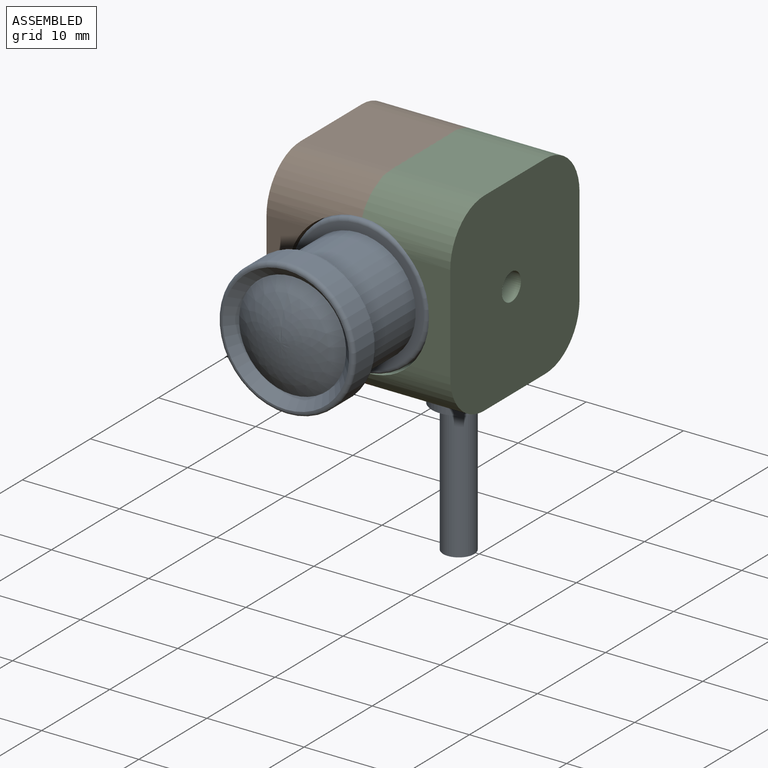
[diagram: assembled view]
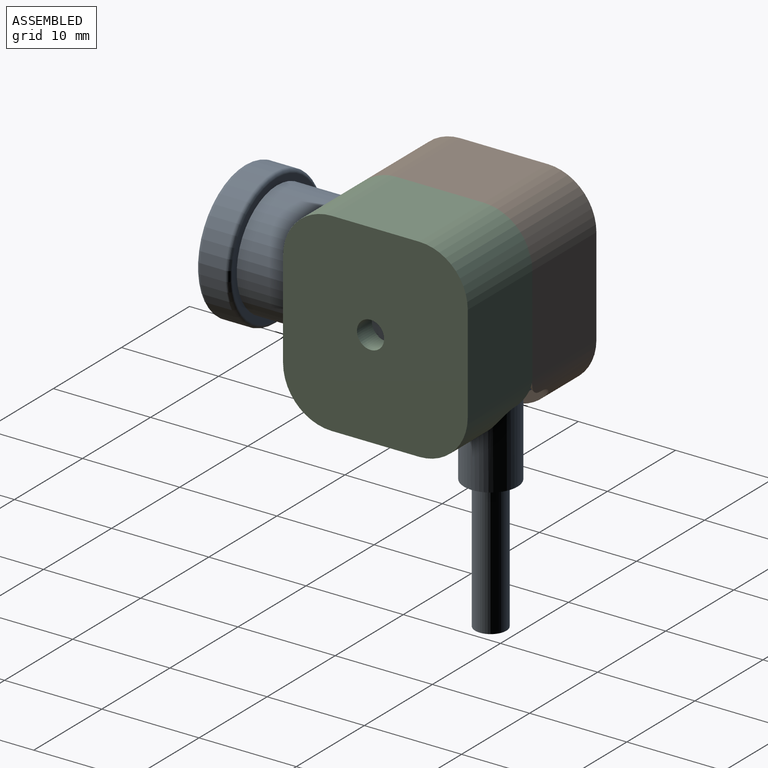
[diagram: assembled view, second angle]
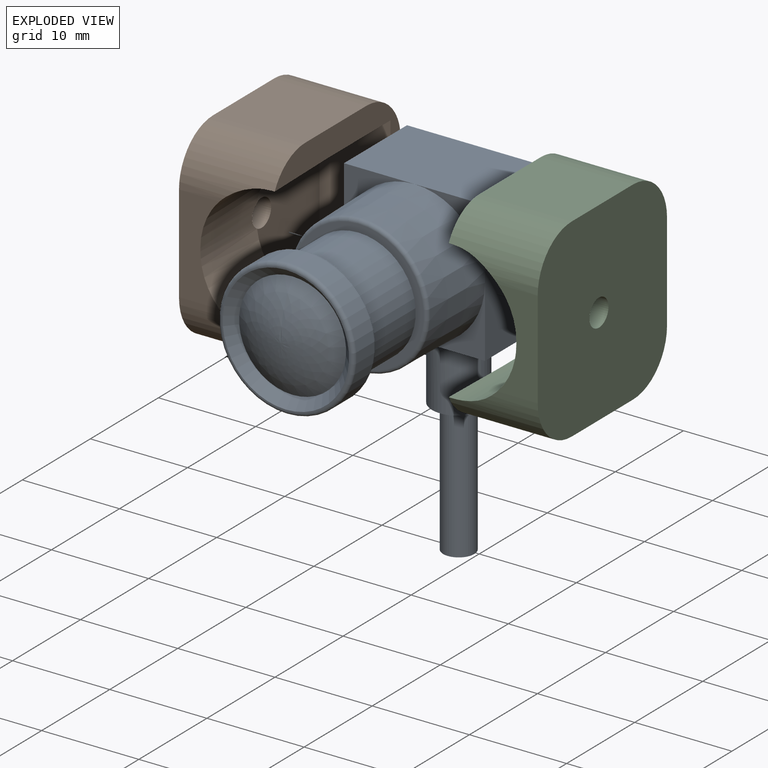
[diagram: exploded view]
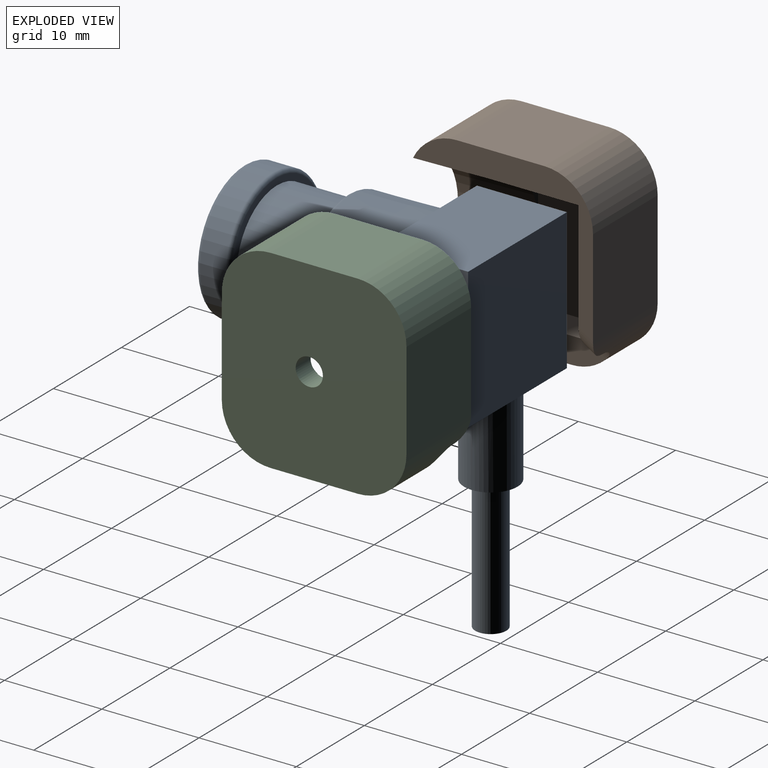
[diagram: exploded view, second angle]
ASSEMBLY  parts=3 mates=2
PART A: 27 faces, bbox 15.4x28.2x36.9 mm
  f0: plane 13.41x13.41mm, normal (0,-1,0), area 32mm2, adj f11,f23
  f1: cone r=7.1mm half-angle=1deg, axis (0,1,0), area 354.5mm2, adj f2,f3,f4,f8,f23
  f2: plane 7.25x7.25mm, normal (0,-1,0), area 11.3mm2, adj f1,f5,f10
  f3: plane 7.25x7.25mm, normal (0,-1,0), area 11.3mm2, adj f1,f9,f10
  f4: plane 7.25x7.25mm, normal (0,-1,0), area 11.3mm2, adj f1,f6,f9
  f5: plane 14.5x9.25mm, normal (0,0,-1), area 110.4mm2, adj f2,f6,f7,f8,f10,f16
  f6: plane 14.5x9.25mm, normal (1,0,0), area 134.1mm2, adj f4,f5,f7,f8,f9
  f7: plane 14.5x14.5mm, normal (0,1,0), area 210.3mm2, adj f5,f6,f9,f10
  f8: plane 7.25x7.25mm, normal (0,-1,0), area 11.3mm2, adj f1,f5,f6
  f9: plane 14.5x9.25mm, normal (0,0,1), area 134.1mm2, adj f3,f4,f6,f7,f10
  f10: plane 14.5x9.25mm, normal (-1,0,0), area 134.1mm2, adj f2,f3,f5,f7,f9
  f11: cylinder r=5.9mm len=11.8mm, axis (0,1,0), area 268.8mm2, adj f0,f14
  f12: cylinder r=7mm len=14mm, axis (0,1,0), area 114.4mm2, adj f21,f22
  f13: plane 13.2x13.2mm, normal (0,-1,0), area 4.1mm2, adj f15,f22
  f14: plane 13.2x13.2mm, normal (0,1,0), area 27.5mm2, adj f11,f21
  f15: cone r=4.5mm half-angle=45deg, axis (0,-1,0), area 53.1mm2, adj f13,f20
  f16: cylinder r=2.75mm len=8.25mm, axis (0,0,1), area 142.5mm2, adj f5,f17
  f17: plane 5.5x5.5mm, normal (0,0,-1), area 15.7mm2, adj f16,f18
  f18: cylinder r=1.6mm len=13.7mm, axis (0,0,1), area 137.7mm2, adj f17,f19
  f19: plane 3.2x3.2mm, normal (0,0,-1), area 8mm2, adj f18
  f20: revolved ~0x0mm, area 0mm2, adj f15
  f21: torus R=6.6mm, axis (0,-1,0), area 27.1mm2, adj f12,f14
  f22: torus R=6.6mm, axis (0,-1,0), area 27.1mm2, adj f12,f13
  f23: torus R=6.71mm, axis (0,-1,0), area 27.2mm2, adj f0,f1
  f24: plane 11x11mm, normal (0,1,0), area 95.1mm2, adj f26
  f25: plane 11x11mm, normal (0,-1,0), area 95mm2, adj f26
  f26: cone r=4.5mm half-angle=45deg, axis (0,-1,0), area 0.1mm2, adj f24,f25
PART B: 28 faces, bbox 19.9x20.1x9.6 mm
  f0: plane 7.63x0.58mm, normal (0,0,1), area 3.3mm2, adj f4,f11,f12,f27
  f1: plane 18.51x14.9mm, normal (0,0,1), area 59.1mm2, adj f5,f6,f8,f15,f16,f19,f20,f25
  f2: plane 9.5x9mm, normal (0,-1,0), area 74.4mm2, adj f3,f7,f18,f21,f22,f23,f26
  f3: plane 10.51x2.84mm, normal (0,0,1), area 25.3mm2, adj f2,f9,f14,f21,f22
  f4: plane 10.01x4.16mm, normal (-1,0,0), area 27.9mm2, adj f0,f7,f11,f12,f20,f21
  f5: plane 10x9.5mm, normal (1,0,0), area 95mm2, adj f1,f7,f18,f19,f25
  f6: plane 9.5x9mm, normal (0,1,0), area 85.5mm2, adj f1,f7,f19,f20
  f7: plane 20x19mm, normal (0,0,-1), area 352.4mm2, adj f2,f4,f5,f6,f18,f19,f20,f21
  f8: plane 7.76x0.3mm, normal (0.02,-1,0), area 2.3mm2, adj f1,f11,f16,f20
  f9: plane 7.76x0.3mm, normal (0.02,1,0), area 2.3mm2, adj f3,f12,f14,f21
  f10: plane 14.6x9.25mm, normal (0,0,1), area 130mm2, adj f13,f14,f15,f16,f17,f27
  f11: cylinder r=7mm len=8.5mm, axis (-1,-0.02,0), area 88.8mm2, adj f0,f4,f8,f13,f20,f27
  f12: cylinder r=7mm len=8.5mm, axis (1,-0.02,0), area 88.8mm2, adj f0,f4,f9,f17,f21,f27
  f13: plane 7.05x6.17mm, normal (1,0,0), area 10.5mm2, adj f10,f11,f16,f27
  f14: plane 9.34x7.39mm, normal (0,1,0), area 42.6mm2, adj f3,f9,f10,f15,f17,f22,f23,f24
  f15: plane 14.6x7.3mm, normal (-1,0,0), area 102.4mm2, adj f1,f10,f14,f16,f24,f25
  f16: plane 9.25x7.3mm, normal (0,-1,0), area 67.5mm2, adj f1,f8,f10,f13,f15
  f17: plane 7.05x6.17mm, normal (1,0,0), area 10.5mm2, adj f10,f12,f14,f27
  f18: cylinder r=5mm len=9.5mm, axis (0,0,1), area 51.5mm2, adj f2,f5,f7,f23,f24,f25
  f19: cylinder r=5mm len=9.5mm, axis (0,0,-1), area 74.6mm2, adj f1,f5,f6,f7
  f20: cylinder r=5mm len=9.5mm, axis (0,0,1), area 66.3mm2, adj f1,f4,f6,f7,f8,f11
  f21: cylinder r=5mm len=9.5mm, axis (0,0,-1), area 66.3mm2, adj f2,f3,f4,f7,f9,f12
  f22: plane 2.7x2mm, normal (1,0,0), area 5.4mm2, adj f2,f3,f14,f26
  f23: plane 4.42x2.7mm, normal (0,0,1), area 9.1mm2, adj f2,f14,f18,f24,f26
  f24: cylinder r=2mm len=3.24mm, axis (-0.83,0.55,0), area 4.2mm2, adj f14,f15,f18,f23,f25
  f25: cylinder r=2mm len=3.29mm, axis (0.83,-0.55,0), area 4.9mm2, adj f1,f5,f15,f18,f24
  f26: cylinder r=2mm len=2.7mm, axis (0,-1,0), area 8.5mm2, adj f2,f14,f22,f23
  f27: cylinder r=1.4mm len=2.8mm, axis (0,0,-1), area 19.4mm2, adj f0,f7,f10,f11,f12,f13,f17
PART C: 28 faces, bbox 19.9x20.1x9.6 mm
  f0: plane 7.63x0.58mm, normal (0,0,-1), area 3.3mm2, adj f4,f11,f12,f27
  f1: plane 18.51x14.9mm, normal (0,0,-1), area 59.1mm2, adj f5,f6,f8,f15,f16,f19,f20,f25
  f2: plane 9.5x9mm, normal (0,-1,0), area 74.4mm2, adj f3,f7,f18,f21,f22,f23,f26
  f3: plane 10.51x2.84mm, normal (0,0,-1), area 25.3mm2, adj f2,f9,f14,f21,f22
  f4: plane 10.01x4.16mm, normal (-1,0,0), area 27.9mm2, adj f0,f7,f11,f12,f20,f21
  f5: plane 10x9.5mm, normal (1,0,0), area 95mm2, adj f1,f7,f18,f19,f25
  f6: plane 9.5x9mm, normal (0,1,0), area 85.5mm2, adj f1,f7,f19,f20
  f7: plane 20x19mm, normal (0,0,1), area 352.4mm2, adj f2,f4,f5,f6,f18,f19,f20,f21
  f8: plane 7.76x0.3mm, normal (0.02,-1,0), area 2.3mm2, adj f1,f11,f16,f20
  f9: plane 7.76x0.3mm, normal (0.02,1,0), area 2.3mm2, adj f3,f12,f14,f21
  f10: plane 14.6x9.25mm, normal (0,0,-1), area 130mm2, adj f13,f14,f15,f16,f17,f27
  f11: cylinder r=7mm len=8.5mm, axis (-1,-0.02,0), area 88.8mm2, adj f0,f4,f8,f13,f20,f27
  f12: cylinder r=7mm len=8.5mm, axis (1,-0.02,0), area 88.8mm2, adj f0,f4,f9,f17,f21,f27
  f13: plane 7.05x6.17mm, normal (1,0,0), area 10.5mm2, adj f10,f11,f16,f27
  f14: plane 9.34x7.39mm, normal (0,1,0), area 42.6mm2, adj f3,f9,f10,f15,f17,f22,f23,f24
  f15: plane 14.6x7.3mm, normal (-1,0,0), area 102.4mm2, adj f1,f10,f14,f16,f24,f25
  f16: plane 9.25x7.3mm, normal (0,-1,0), area 67.5mm2, adj f1,f8,f10,f13,f15
  f17: plane 7.05x6.17mm, normal (1,0,0), area 10.5mm2, adj f10,f12,f14,f27
  f18: cylinder r=5mm len=9.5mm, axis (0,0,-1), area 51.5mm2, adj f2,f5,f7,f23,f24,f25
  f19: cylinder r=5mm len=9.5mm, axis (0,0,1), area 74.6mm2, adj f1,f5,f6,f7
  f20: cylinder r=5mm len=9.5mm, axis (0,0,-1), area 66.3mm2, adj f1,f4,f6,f7,f8,f11
  f21: cylinder r=5mm len=9.5mm, axis (0,0,1), area 66.3mm2, adj f2,f3,f4,f7,f9,f12
  f22: plane 2.7x2mm, normal (1,0,0), area 5.4mm2, adj f2,f3,f14,f26
  f23: plane 4.42x2.7mm, normal (0,0,-1), area 9.1mm2, adj f2,f14,f18,f24,f26
  f24: cylinder r=2mm len=3.24mm, axis (-0.83,0.55,0), area 4.2mm2, adj f14,f15,f18,f23,f25
  f25: cylinder r=2mm len=3.29mm, axis (0.83,-0.55,0), area 4.9mm2, adj f1,f5,f15,f18,f24
  f26: cylinder r=2mm len=2.7mm, axis (0,-1,0), area 8.5mm2, adj f2,f14,f22,f23
  f27: cylinder r=1.4mm len=2.8mm, axis (0,0,1), area 19.4mm2, adj f0,f7,f10,f11,f12,f13,f17
PLACE A t=(-0.94,-6.4,5.41)mm
PLACE B rot(axis=(0.58,0.58,0.58),120deg) t=(-10.39,3.1,5.36)mm
PLACE C rot(axis=(0.58,0.58,0.58),120deg) t=(-30.49,3.1,5.36)mm
MATE fastened C.f10 <-> A.f6  axis (-1,0,0) through (6.31,11.1,12.66)mm
MATE fastened B.f10 <-> A.f10  axis (1,0,0) through (-8.19,11.1,12.66)mm
